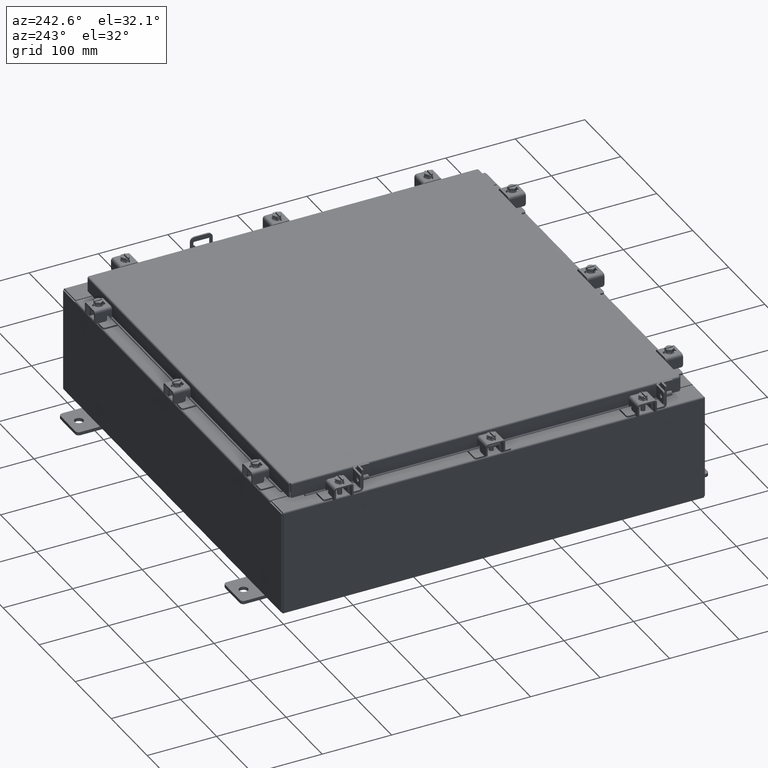
[diagram: clean part render]
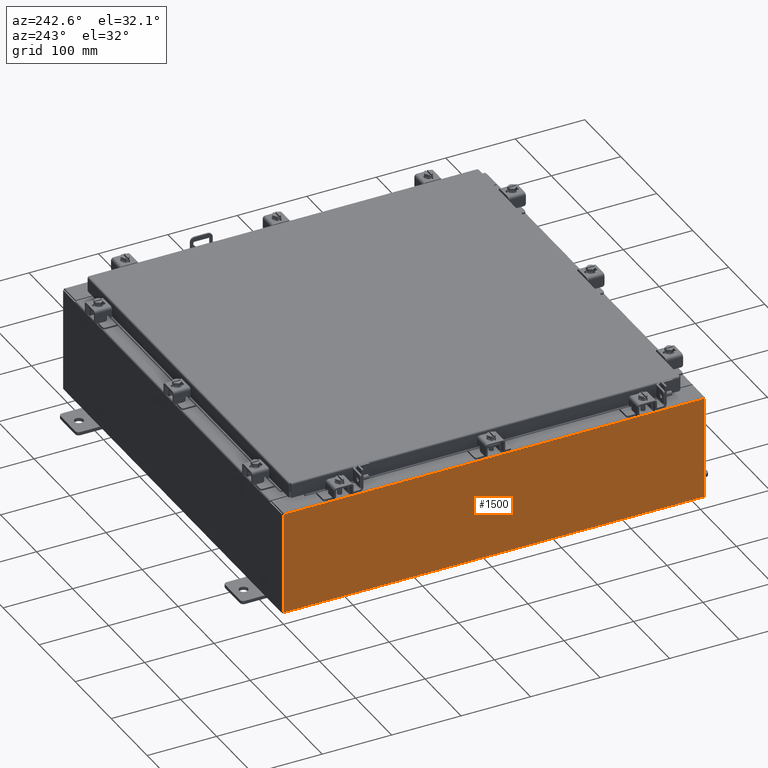
[diagram: same view with one face highlighted and labeled with its STEP entity id]
A machine part, auxiliary view. The second image highlights one B-rep face of the part: STEP entity #1500.
In plain terms, the highlighted planar face has unit normal (1, 0, 0).
Its self-contained STEP definition (entity closure, byte-faithful):
#988 = CARTESIAN_POINT ( 'NONE',  ( -12.00000000000000400, -11.92530000000000000, 0.01299999999999986400 ) ) ;
#1500 = ADVANCED_FACE ( 'NONE', ( #8352 ), #14527, .F. ) ;
#2125 = CARTESIAN_POINT ( 'NONE',  ( -12.00000000000002300, 11.92529999999999800, 5.837599999999999200 ) ) ;
#2727 = VERTEX_POINT ( 'NONE', #988 ) ;
#3072 = DIRECTION ( 'NONE',  ( 3.319545939341922800E-015, 0.0000000000000000000, -1.000000000000000000 ) ) ;
#3229 = LINE ( 'NONE', #18104, #12461 ) ;
#4729 = DIRECTION ( 'NONE',  ( 0.0000000000000000000, 1.000000000000000000, 0.0000000000000000000 ) ) ;
#6674 = ORIENTED_EDGE ( 'NONE', *, *, #13818, .T. ) ;
#7033 = VECTOR ( 'NONE', #18622, 39.37007874015748100 ) ;
#7133 = VERTEX_POINT ( 'NONE', #17387 ) ;
#7191 = LINE ( 'NONE', #13372, #11283 ) ;
#7423 = ORIENTED_EDGE ( 'NONE', *, *, #17799, .T. ) ;
#7667 = DIRECTION ( 'NONE',  ( -3.319545939341922800E-015, 0.0000000000000000000, 1.000000000000000000 ) ) ;
#8165 = CARTESIAN_POINT ( 'NONE',  ( -12.00000000000000400, 11.92529999999999800, 0.01299999999999986400 ) ) ;
#8242 = CARTESIAN_POINT ( 'NONE',  ( -12.00000000000000400, 11.92529999999999800, -4.009536492811465500E-014 ) ) ;
#8352 = FACE_OUTER_BOUND ( 'NONE', #11447, .T. ) ;
#8471 = AXIS2_PLACEMENT_3D ( 'NONE', #18191, #19555, #21485 ) ;
#9290 = VERTEX_POINT ( 'NONE', #11205 ) ;
#10940 = ORIENTED_EDGE ( 'NONE', *, *, #22069, .T. ) ;
#11205 = CARTESIAN_POINT ( 'NONE',  ( -12.00000000000002500, -11.92530000000000000, 5.837599999999999200 ) ) ;
#11283 = VECTOR ( 'NONE', #4729, 39.37007874015748100 ) ;
#11447 = EDGE_LOOP ( 'NONE', ( #6674, #7423, #13665, #10940 ) ) ;
#11656 = EDGE_CURVE ( 'NONE', #2727, #7133, #20965, .T. ) ;
#11825 = VECTOR ( 'NONE', #3072, 39.37007874015748100 ) ;
#12461 = VECTOR ( 'NONE', #7667, 39.37007874015748100 ) ;
#13372 = CARTESIAN_POINT ( 'NONE',  ( -12.00000000000002500, -11.92530000000000400, 5.837599999999999200 ) ) ;
#13665 = ORIENTED_EDGE ( 'NONE', *, *, #11656, .F. ) ;
#13818 = EDGE_CURVE ( 'NONE', #9290, #21982, #7191, .T. ) ;
#14527 = PLANE ( 'NONE',  #8471 ) ;
#17033 = LINE ( 'NONE', #8242, #11825 ) ;
#17387 = CARTESIAN_POINT ( 'NONE',  ( -12.00000000000000400, 11.92529999999999800, 0.01299999999999985900 ) ) ;
#17799 = EDGE_CURVE ( 'NONE', #21982, #7133, #17033, .T. ) ;
#18104 = CARTESIAN_POINT ( 'NONE',  ( -12.00000000000000400, -11.92530000000000400, -4.009536492811465500E-014 ) ) ;
#18191 = CARTESIAN_POINT ( 'NONE',  ( -12.00000000000000400, 0.0000000000000000000, -4.009536492811465500E-014 ) ) ;
#18622 = DIRECTION ( 'NONE',  ( -0.0000000000000000000, 1.000000000000000000, -0.0000000000000000000 ) ) ;
#19555 = DIRECTION ( 'NONE',  ( 1.000000000000000000, 0.0000000000000000000, 3.319545939341922800E-015 ) ) ;
#20965 = LINE ( 'NONE', #8165, #7033 ) ;
#21485 = DIRECTION ( 'NONE',  ( 3.319545939341922800E-015, 0.0000000000000000000, -1.000000000000000000 ) ) ;
#21982 = VERTEX_POINT ( 'NONE', #2125 ) ;
#22069 = EDGE_CURVE ( 'NONE', #2727, #9290, #3229, .T. ) ;